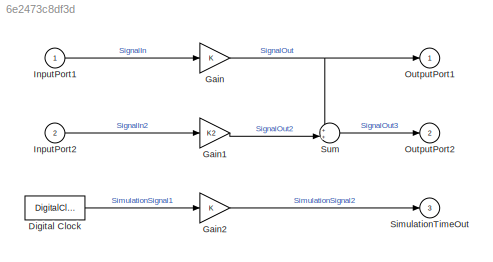
MODEL slx_6e2473c8df3d
KIND model
CONFIG AbsTol = auto
CONFIG EnableMultiTasking = on
CONFIG FixedStep = 0.1
CONFIG MaxStep = auto
CONFIG MinStep = auto
CONFIG RelTol = 1e-3
CONFIG SampleTimeConstraint = Unconstrained
CONFIG Solver = FixedStepDiscrete
CONFIG SolverName = FixedStepDiscrete
CONFIG StartTime = 0.0
CONFIG StopTime = 10
BLOCK [DigitalClock] Digital Clock
  SampleTime = 0.1
BLOCK [Gain] Gain
  Gain = K
  OutDataTypeStr = single
  ParamDataTypeStr = Inherit: Inherit via internal rule
  SaturateOnIntegerOverflow = off
BLOCK [Gain] Gain1
  Gain = K2
  OutDataTypeStr = uint16
  ParamDataTypeStr = Inherit: Inherit via internal rule
  SaturateOnIntegerOverflow = off
BLOCK [Gain] Gain2
  ParamDataTypeStr = Inherit: Inherit via internal rule
  SaturateOnIntegerOverflow = off
BLOCK [Inport] InputPort1
  IconDisplay = Port number
  OutDataTypeStr = single
BLOCK [Inport] InputPort2
  IconDisplay = Port number
  OutDataTypeStr = uint16
  Port = 2
BLOCK [Outport] OutputPort1
  IconDisplay = Port number
BLOCK [Outport] OutputPort2
  IconDisplay = Port number
  Port = 2
BLOCK [Outport] SimulationTimeOut
  IconDisplay = Port number
  Port = 3
BLOCK [Sum] Sum
  IconShape = round
  InputSameDT = off
  Inputs = ++|
  OutDataTypeStr = Inherit: Inherit via internal rule
  Ports = [2, 1]
  SaturateOnIntegerOverflow = off
LINE Digital Clock:1 -> Gain2:1
LINE Gain1:1 -> Sum:2
LINE Gain2:1 -> SimulationTimeOut:1
NET Gain:1 -> OutputPort1:1, Sum:1
LINE InputPort1:1 -> Gain:1
LINE InputPort2:1 -> Gain1:1
LINE Sum:1 -> OutputPort2:1
note: NET lines group one-source signal fan-out (src -> all destinations, sorted); 1:1 wires keep LINE
